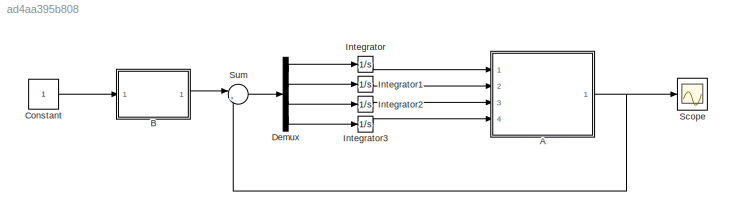
MODEL slx_ad4aa395b808
KIND model
CONFIG AbsTol = auto
CONFIG EnableMultiTasking = off
CONFIG FixedStep = auto
CONFIG MaxStep = auto
CONFIG MinStep = auto
CONFIG RelTol = 1e-3
CONFIG SampleTimeConstraint = Unconstrained
CONFIG Solver = VariableStepAuto
CONFIG SolverName = VariableStepAuto
CONFIG StartTime = 0.0
CONFIG StopTime = 10.0
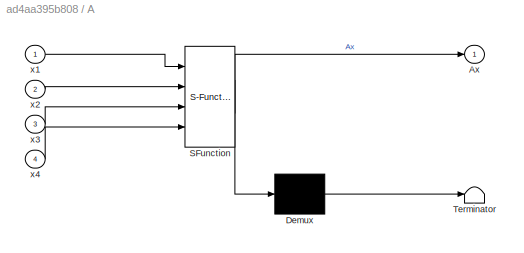
BLOCK [SubSystem] A
  ErrorFcn = Stateflow.Translate.translate
  PermitHierarchicalResolution = ExplicitOnly
  Ports = [4, 1]
  RequestExecContextInheritance = off
  SFBlockType = MATLAB Function
  TreatAsAtomicUnit = on
BLOCK [Demux] A/ Demux 
  Outputs = 1
  Ports = [1, 1]
BLOCK [S-Function] A/ SFunction 
  EnableBusSupport = on
  FunctionName = sf_sfun
  PortCounts = [4 2]
  Ports = [4, 2]
  SFcnIsStateOwnerBlock = off
  SFunctionDeploymentMode = off
  Tag = Stateflow S-Function pruebas 2
BLOCK [Terminator] A/ Terminator 
BLOCK [Outport] A/Ax
  IconDisplay = Port number
BLOCK [Inport] A/x1
  IconDisplay = Port number
BLOCK [Inport] A/x2
  IconDisplay = Port number
  Port = 2
BLOCK [Inport] A/x3
  IconDisplay = Port number
  Port = 3
BLOCK [Inport] A/x4
  IconDisplay = Port number
  Port = 4
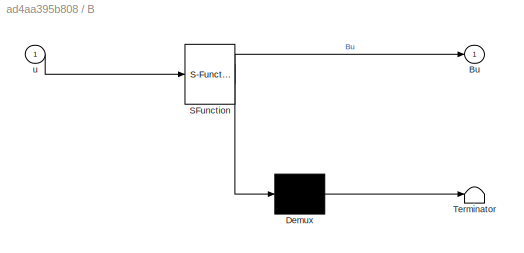
BLOCK [SubSystem] B 
  ErrorFcn = Stateflow.Translate.translate
  PermitHierarchicalResolution = ExplicitOnly
  Ports = [1, 1]
  RequestExecContextInheritance = off
  SFBlockType = MATLAB Function
  TreatAsAtomicUnit = on
BLOCK [Demux] B / Demux 
  Outputs = 1
  Ports = [1, 1]
BLOCK [S-Function] B / SFunction 
  EnableBusSupport = on
  FunctionName = sf_sfun
  PortCounts = [1 2]
  Ports = [1, 2]
  SFcnIsStateOwnerBlock = off
  SFunctionDeploymentMode = off
  Tag = Stateflow S-Function pruebas 1
BLOCK [Terminator] B / Terminator 
BLOCK [Outport] B /Bu
  IconDisplay = Port number
BLOCK [Inport] B /u
  IconDisplay = Port number
BLOCK [Constant] Constant
BLOCK [Demux] Demux
  DisplayOption = bar
  Ports = [1, 4]
BLOCK [Integrator] Integrator
  InitialCondition = 1
  Ports = [1, 1]
BLOCK [Integrator] Integrator1
  InitialCondition = -1
  Ports = [1, 1]
BLOCK [Integrator] Integrator2
  Ports = [1, 1]
BLOCK [Integrator] Integrator3
  InitialCondition = 2
  Ports = [1, 1]
BLOCK [Scope] Scope
  Floating = off
  NumInputPorts = 1
  Ports = [1]
  ScopeSpecificationString = Simulink.scopes.TimeScopeBlockCfg('CurrentConfiguration', extmgr.ConfigurationSet(extmgr.Configuration('Core','General UI',true),extmgr.Configuration('Core','Source UI',true),extmgr.Configuration('Sources','WiredSimulink',true),extmgr.Configuration('Visuals','Time Domain',true,'SerializedDisplays',{struct('MinYLimReal','-118.75','MaxYLimReal','158.75','YLabelReal','','MinYLimMag',' 0.00000','MaxYL...<+1461ch>
BLOCK [Sum] Sum
  IconShape = round
  InputSameDT = off
  Inputs = |++
  OutDataTypeStr = Inherit: Inherit via internal rule
  Ports = [2, 1]
  SaturateOnIntegerOverflow = off
NET A:1 -> Scope:1, Sum:2
LINE B :1 -> Sum:1
LINE Constant:1 -> B :1
LINE Demux:1 -> Integrator:1
LINE Demux:2 -> Integrator1:1
LINE Demux:3 -> Integrator2:1
LINE Demux:4 -> Integrator3:1
LINE Integrator1:1 -> A:2
LINE Integrator2:1 -> A:3
LINE Integrator3:1 -> A:4
LINE Integrator:1 -> A:1
LINE Sum:1 -> Demux:1
note: NET lines group one-source signal fan-out (src -> all destinations, sorted); 1:1 wires keep LINE
CHART B
 states=1 transitions=1
  STATE_LABEL 'eML_blk_kernel()'
  STATE_LABEL 'SCRIPT:\nfunction Bu = fcn(u)\n\nu = u * [1;\n         1];\n\nB = [-1, -4;\n      1,  6;\n     -1, -11;\n      1,  7];\n  \n% B = [-1;\n%       1;\n%      -1;\n%       1];\n\nBu = B*u;\n'
CHART A states=1 transitions=1
  STATE_LABEL 'eML_blk_kernel()'
  STATE_LABEL 'SCRIPT:\nfunction Ax = fcn(x1, x2, x3, x4)\n\nx = [x1;\n     x2;\n     x3;\n     x4];\n\nA = [ 2, -11,  12,  31;\n     -3,  13, -11, -33;\n      4, -25,  14,  51;\n     -3,  16, -11, -36];\n\nAx = A*x;\n'
